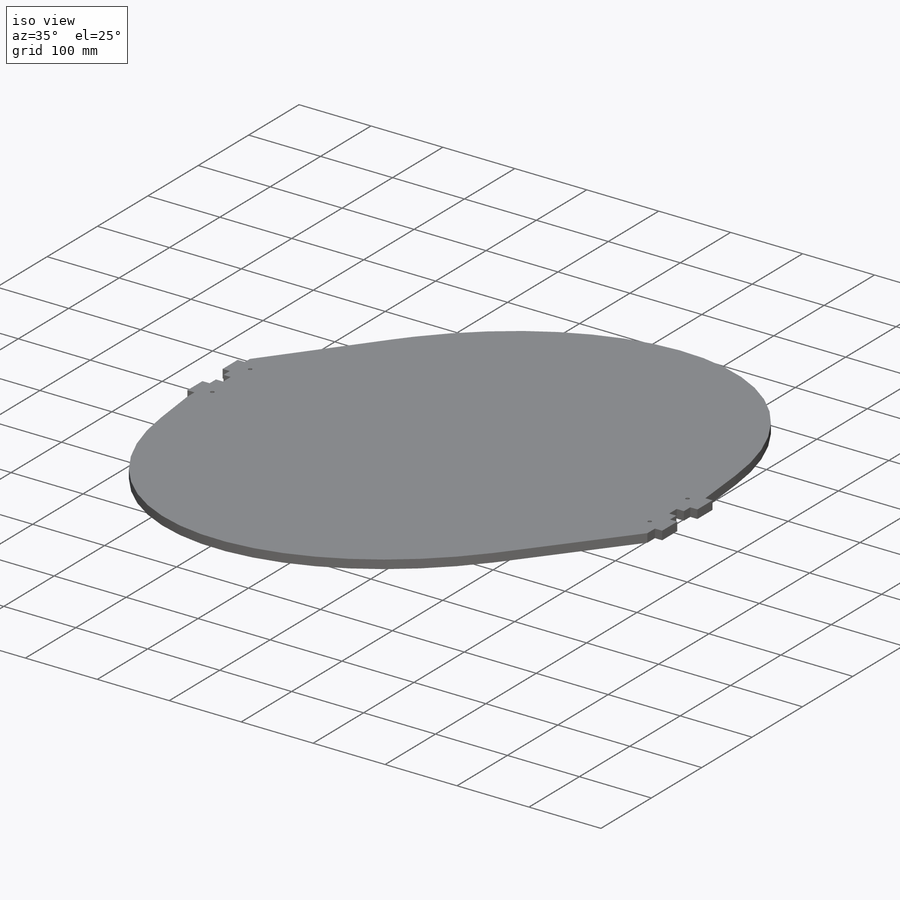
[diagram: iso view]
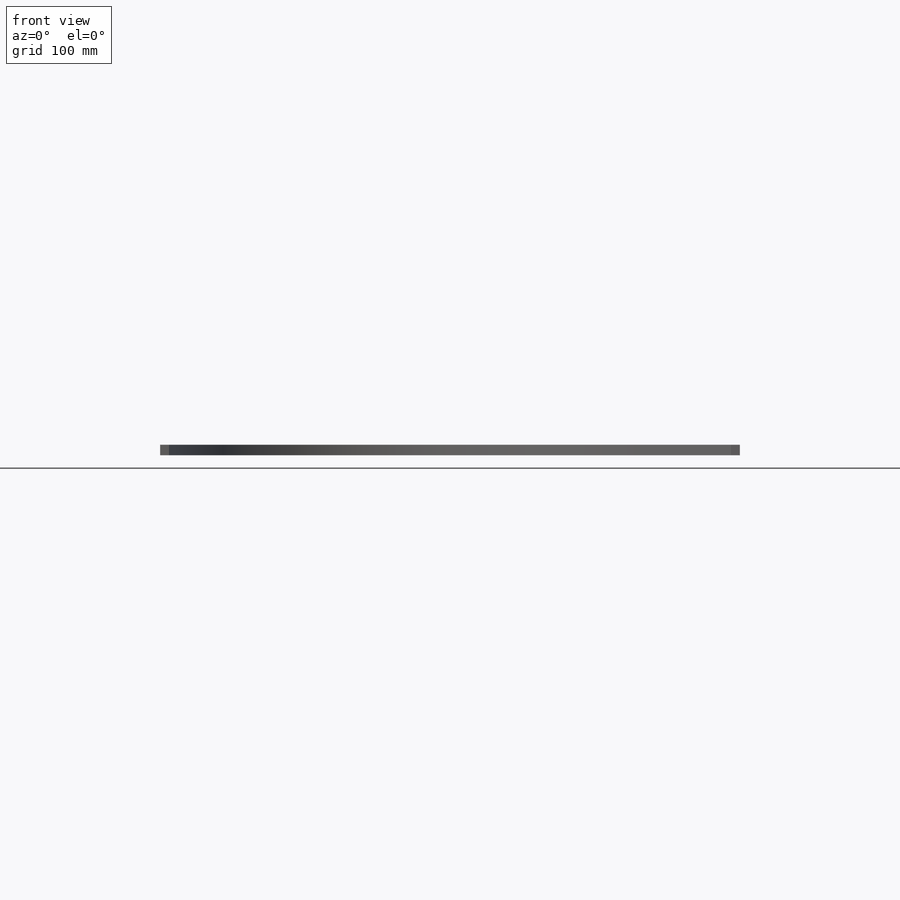
[diagram: front view]
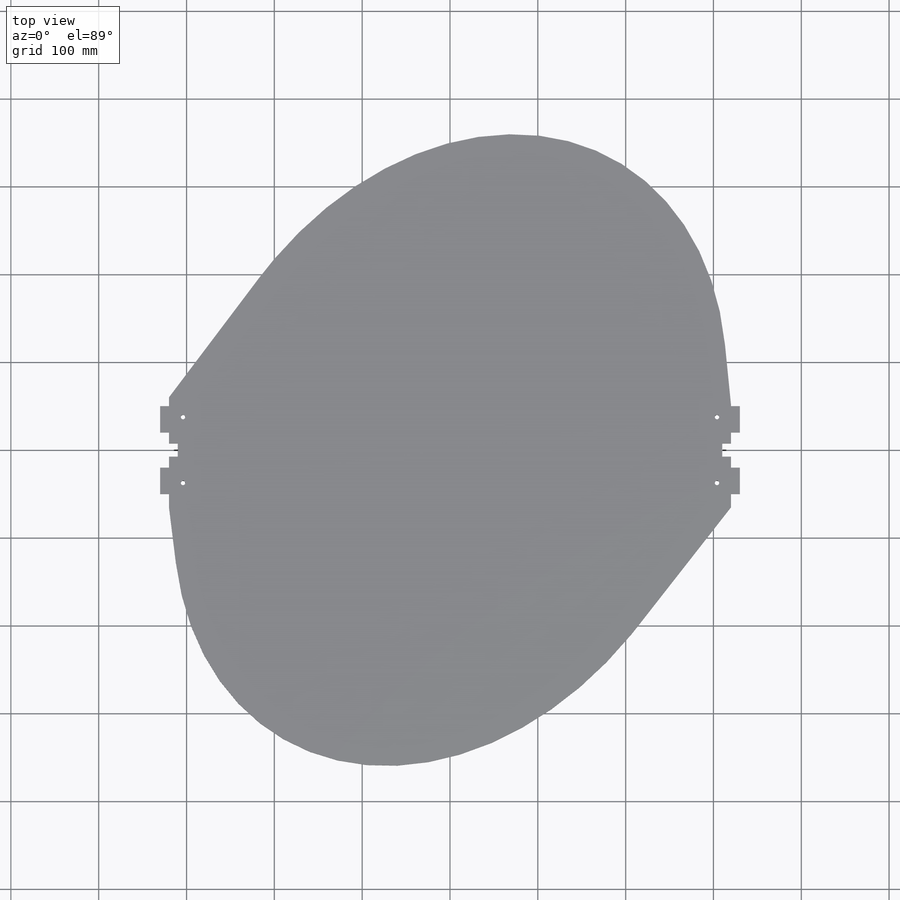
[diagram: top view]
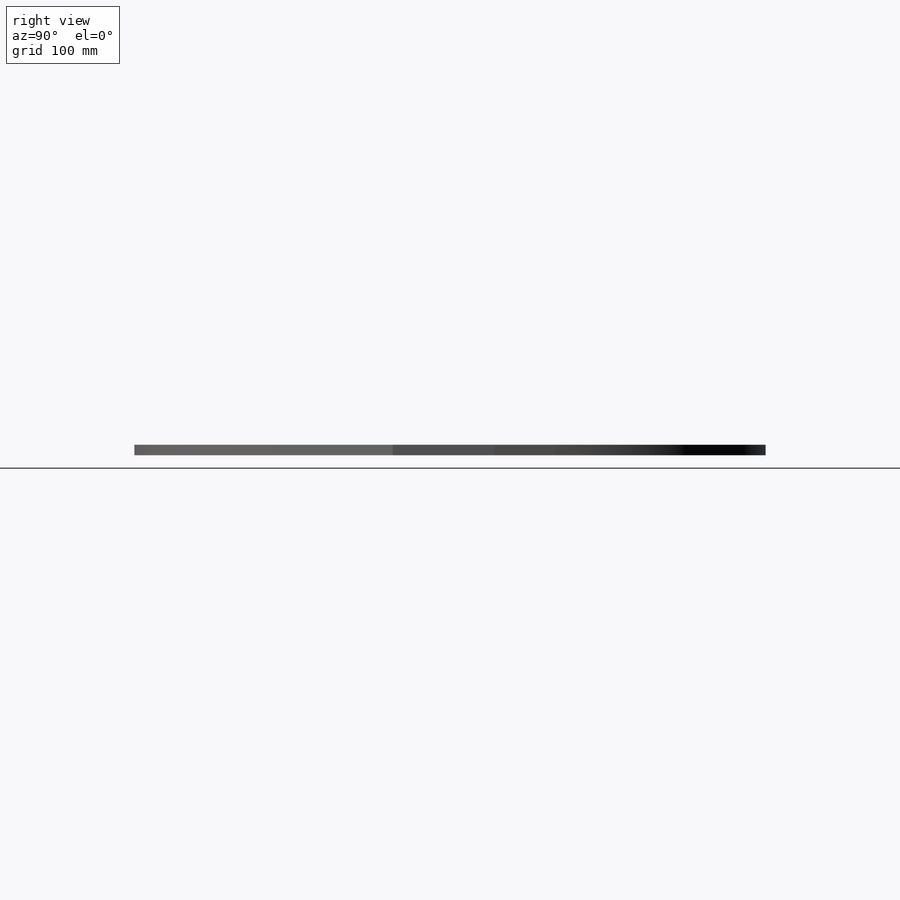
[diagram: right view]
SOLIDWORKS PART (.sldprt)
format: sldprt  version: not decoded by parser v0  size: 408,576 bytes
history: native  units: mm
features: sketch x4, material x1, extrude x1, cut_extrude x1, hole x1 (+12 scaffold rows collapsed)
feature tree (20):
  scaffold x12  (default folders/planes/origin — collapsed)
  material  "Material <not specified>"
  sketch  "Sketch1"  dims[D1=500.0mm D2=710.0mm D3=580.0mm D4=760.0mm]
  extrude  "Boss-Extrude1"  Depth=12mm
  sketch  "Sketch2"  dims[D1=15.0mm D2=10.0mm]
  cut_extrude  "Cut-Extrude1"  Depth=12mm
  hole  "Ø5.0 (5) Diameter Hole2"  Diameter=5mm Depth=25mm
  sketch  "Sketch5"
  sketch  "Sketch6"  dims[Hole Dia.=5.0mm Hole Depth=25.0mm Drill Angle=118.0deg]
decode coverage: 6 of 7 modeling features carry decoded parameters
note: suppression state not decoded; provenance and decode notes live in map.json
